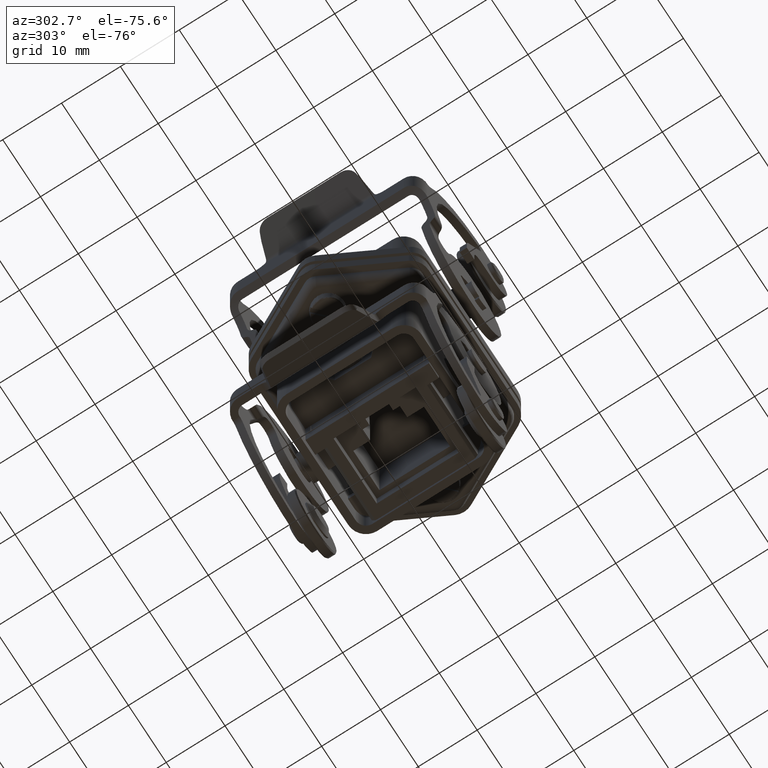
[diagram: clean part render]
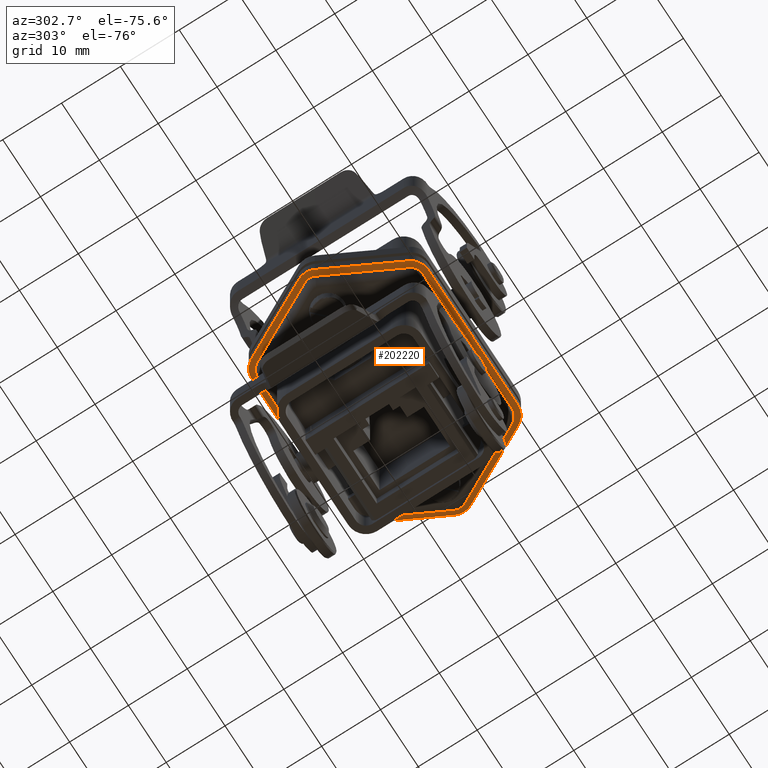
[diagram: same view with one face highlighted and labeled with its STEP entity id]
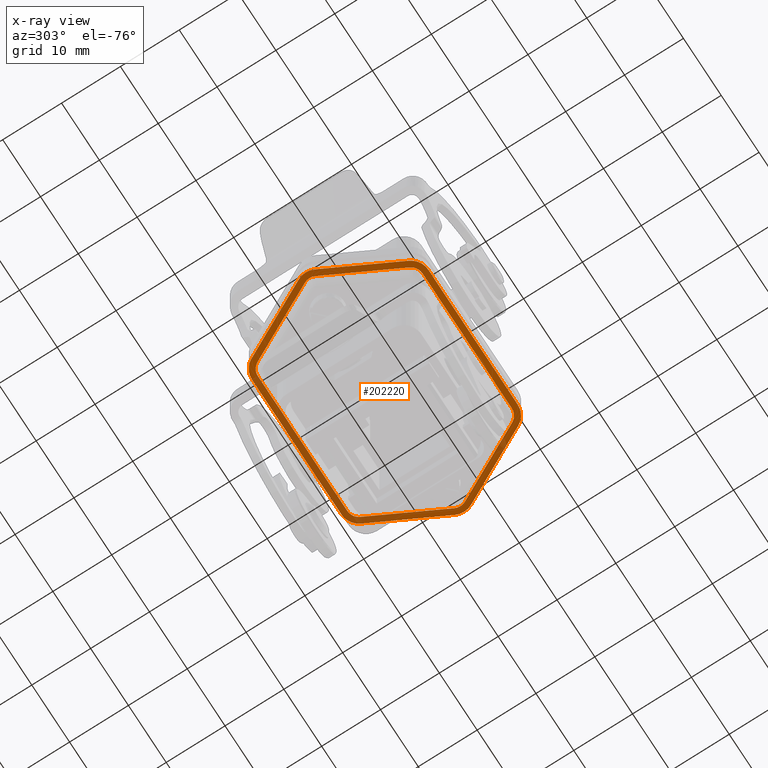
[diagram: x-ray of the same camera — body ghosted, the highlighted face saturated]
A machine part, auxiliary view. The second image highlights one B-rep face of the part: STEP entity #202220.
The next image is the same camera in x-ray: the body ghosted, the highlighted face saturated — about 26% of this face is hidden behind the body in this view.
In plain terms, the highlighted planar face has unit normal (0, 0, -1).
Its self-contained STEP definition (entity closure, byte-faithful):
#36840=CARTESIAN_POINT('',(11.8153415615735,15.,-23.5));
#36850=VERTEX_POINT('',#36840);
#37020=CARTESIAN_POINT('',(-11.8153417853227,15.,-23.5));
#37030=VERTEX_POINT('',#37020);
#37060=CARTESIAN_POINT('',(11.8153415615735,15.,-23.5));
#37070=DIRECTION('',(-1.,0.,0.));
#37080=VECTOR('',#37070,23.630683123147);
#37090=LINE('',#37060,#37080);
#37100=EDGE_CURVE('',#36850,#37030,#37090,.T.);
#44220=CARTESIAN_POINT('',(-20.6666666666667,-1.37436854187256,-23.5));
#44230=VERTEX_POINT('',#44220);
#44400=CARTESIAN_POINT('',(-14.4820083087665,-13.3743683856286,-23.5));
#44410=VERTEX_POINT('',#44400);
#44440=CARTESIAN_POINT('',(-20.6666666666667,-1.37436854187256,-23.5));
#44450=DIRECTION('',(0.458122847290851,-0.888888888888889,0.));
#44460=VECTOR('',#44450,13.5);
#44470=LINE('',#44440,#44460);
#44480=EDGE_CURVE('',#44230,#44410,#44470,.T.);
#53060=CARTESIAN_POINT('',(-14.4820082282402,13.3743685418726,-23.5));
#53070=VERTEX_POINT('',#53060);
#53100=CARTESIAN_POINT('',(-11.8153415615735,12.,-23.5));
#53110=DIRECTION('',(0.,0.,1.));
#53120=DIRECTION('',(-0.888888888888889,0.458122847290851,-0.));
#53130=AXIS2_PLACEMENT_3D('',#53100,#53110,#53120);
#53140=CIRCLE('',#53130,3.);
#53150=EDGE_CURVE('',#37030,#53070,#53140,.T.);
#87320=CARTESIAN_POINT('',(-11.8153417854082,-15.,-23.5));
#87330=VERTEX_POINT('',#87320);
#87360=CARTESIAN_POINT('',(-11.8153415615735,-12.,-23.5));
#87370=DIRECTION('',(0.,0.,1.));
#87380=DIRECTION('',(0.,-1.,0.));
#87390=AXIS2_PLACEMENT_3D('',#87360,#87370,#87380);
#87400=CIRCLE('',#87390,3.);
#87410=EDGE_CURVE('',#44410,#87330,#87400,.T.);
#114140=CARTESIAN_POINT('',(-20.6666666666667,1.37436854187256,-23.5));
#114150=VERTEX_POINT('',#114140);
#114180=CARTESIAN_POINT('',(-14.4820082282402,13.3743685418726,-23.5));
#114190=DIRECTION('',(-0.458122847290851,-0.888888888888889,0.));
#114200=VECTOR('',#114190,13.5);
#114210=LINE('',#114180,#114200);
#114220=EDGE_CURVE('',#53070,#114150,#114210,.T.);
#117080=CARTESIAN_POINT('',(19.7777777777778,-0.916245694581701,-23.5));
#117090=VERTEX_POINT('',#117080);
#117170=CARTESIAN_POINT('',(13.5931193393513,-12.9162456945817,-23.5));
#117180=VERTEX_POINT('',#117170);
#117210=CARTESIAN_POINT('',(19.7777777777778,-0.916245694581701,-23.5));
#117220=DIRECTION('',(-0.458122847290851,-0.888888888888889,0.));
#117230=VECTOR('',#117220,13.5);
#117240=LINE('',#117210,#117230);
#117250=EDGE_CURVE('',#117090,#117180,#117240,.T.);
#118060=CARTESIAN_POINT('',(-18.,0.,-23.5));
#118070=DIRECTION('',(0.,0.,1.));
#118080=DIRECTION('',(-0.888888888888889,-0.458122847290852,0.));
#118090=AXIS2_PLACEMENT_3D('',#118060,#118070,#118080);
#118100=CIRCLE('',#118090,3.);
#118110=EDGE_CURVE('',#114150,#44230,#118100,.T.);
#118320=CARTESIAN_POINT('',(14.4820082282402,13.3743685418726,-23.5));
#118330=VERTEX_POINT('',#118320);
#118460=CARTESIAN_POINT('',(11.8153415615735,12.,-23.5));
#118470=DIRECTION('',(0.,0.,1.));
#118480=DIRECTION('',(0.,1.,0.));
#118490=AXIS2_PLACEMENT_3D('',#118460,#118470,#118480);
#118500=CIRCLE('',#118490,3.);
#118510=EDGE_CURVE('',#118330,#36850,#118500,.T.);
#133010=CARTESIAN_POINT('',(19.7777777777778,0.916245694581701,-23.5));
#133020=VERTEX_POINT('',#133010);
#133070=CARTESIAN_POINT('',(18.,2.220446E-15,-23.5));
#133080=DIRECTION('',(0.,0.,-1.));
#133090=DIRECTION('',(0.888888888888889,0.458122847290851,0.));
#133100=AXIS2_PLACEMENT_3D('',#133070,#133080,#133090);
#133110=CIRCLE('',#133100,2.);
#133120=EDGE_CURVE('',#133020,#117090,#133110,.T.);
#133330=CARTESIAN_POINT('',(13.5931193393513,12.9162456945817,-23.5));
#133340=VERTEX_POINT('',#133330);
#133390=CARTESIAN_POINT('',(13.5931193393513,12.9162456945817,-23.5));
#133400=DIRECTION('',(0.458122847290851,-0.888888888888889,0.));
#133410=VECTOR('',#133400,13.5);
#133420=LINE('',#133390,#133410);
#133430=EDGE_CURVE('',#133340,#133020,#133420,.T.);
#133640=CARTESIAN_POINT('',(11.8153415615735,-14.,-23.5));
#133650=VERTEX_POINT('',#133640);
#133820=CARTESIAN_POINT('',(-11.8153415615735,-14.,-23.5));
#133830=VERTEX_POINT('',#133820);
#133860=CARTESIAN_POINT('',(11.8153415615735,-14.,-23.5));
#133870=DIRECTION('',(-1.,0.,0.));
#133880=VECTOR('',#133870,23.630683123147);
#133890=LINE('',#133860,#133880);
#133900=EDGE_CURVE('',#133650,#133830,#133890,.T.);
#134210=CARTESIAN_POINT('',(-13.5931193393513,-12.9162456945817,-23.5));
#134220=VERTEX_POINT('',#134210);
#134250=CARTESIAN_POINT('',(-11.8153415615735,-12.,-23.5));
#134260=DIRECTION('',(0.,0.,-1.));
#134270=DIRECTION('',(0.,-1.,0.));
#134280=AXIS2_PLACEMENT_3D('',#134250,#134260,#134270);
#134290=CIRCLE('',#134280,2.);
#134300=EDGE_CURVE('',#133830,#134220,#134290,.T.);
#134510=CARTESIAN_POINT('',(-11.8153415615735,14.,-23.5));
#134520=VERTEX_POINT('',#134510);
#134600=CARTESIAN_POINT('',(11.8153415615735,14.,-23.5));
#134610=VERTEX_POINT('',#134600);
#134640=CARTESIAN_POINT('',(-11.8153415615735,14.,-23.5));
#134650=DIRECTION('',(1.,0.,0.));
#134660=VECTOR('',#134650,23.630683123147);
#134670=LINE('',#134640,#134660);
#134680=EDGE_CURVE('',#134520,#134610,#134670,.T.);
#134880=CARTESIAN_POINT('',(11.8153415615735,12.,-23.5));
#134890=DIRECTION('',(0.,0.,-1.));
#134900=DIRECTION('',(0.,1.,0.));
#134910=AXIS2_PLACEMENT_3D('',#134880,#134890,#134900);
#134920=CIRCLE('',#134910,1.99999999999999);
#134930=EDGE_CURVE('',#134610,#133340,#134920,.T.);
#135140=CARTESIAN_POINT('',(-13.5931193393513,12.9162456945817,-23.5));
#135150=VERTEX_POINT('',#135140);
#135280=CARTESIAN_POINT('',(-11.8153415615735,12.,-23.5));
#135290=DIRECTION('',(0.,0.,-1.));
#135300=DIRECTION('',(-0.888888888888889,0.458122847290851,0.));
#135310=AXIS2_PLACEMENT_3D('',#135280,#135290,#135300);
#135320=CIRCLE('',#135310,1.99999999999998);
#135330=EDGE_CURVE('',#135150,#134520,#135320,.T.);
#135540=CARTESIAN_POINT('',(-19.7777777777778,0.916245694581703,-23.5));
#135550=VERTEX_POINT('',#135540);
#135670=CARTESIAN_POINT('',(-19.7777777777778,0.916245694581703,-23.5));
#135680=DIRECTION('',(0.458122847290851,0.888888888888889,0.));
#135690=VECTOR('',#135680,13.5);
#135700=LINE('',#135670,#135690);
#135710=EDGE_CURVE('',#135550,#135150,#135700,.T.);
#135920=CARTESIAN_POINT('',(-19.7777777777778,-0.916245694581705,-23.5))
;
#135930=VERTEX_POINT('',#135920);
#136060=CARTESIAN_POINT('',(-18.,2.220446E-15,-23.5));
#136070=DIRECTION('',(0.,0.,-1.));
#136080=DIRECTION('',(-0.888888888888889,-0.458122847290851,0.));
#136090=AXIS2_PLACEMENT_3D('',#136060,#136070,#136080);
#136100=CIRCLE('',#136090,2.00000000000001);
#136110=EDGE_CURVE('',#135930,#135550,#136100,.T.);
#136360=CARTESIAN_POINT('',(-13.5931193393513,-12.9162456945817,-23.5));
#136370=DIRECTION('',(-0.458122847290851,0.888888888888889,-0.));
#136380=VECTOR('',#136370,13.5);
#136390=LINE('',#136360,#136380);
#136400=EDGE_CURVE('',#134220,#135930,#136390,.T.);
#201370=CARTESIAN_POINT('',(11.8153415615735,-12.,-23.5));
#201380=DIRECTION('',(0.,0.,-1.));
#201390=DIRECTION('',(0.888888888888889,-0.458122847290852,0.));
#201400=AXIS2_PLACEMENT_3D('',#201370,#201380,#201390);
#201410=CIRCLE('',#201400,2.);
#201420=EDGE_CURVE('',#117180,#133650,#201410,.T.);
#201540=CARTESIAN_POINT('',(-5.8643886788005E-15,-5.551115E-16,-23.5));
#201550=DIRECTION('',(0.,0.,-1.));
#201560=DIRECTION('',(1.,0.,0.));
#201570=AXIS2_PLACEMENT_3D('',#201540,#201550,#201560);
#201580=PLANE('',#201570);
#201590=ORIENTED_EDGE('',*,*,#134300,.F.);
#201600=ORIENTED_EDGE('',*,*,#136400,.F.);
#201610=ORIENTED_EDGE('',*,*,#136110,.F.);
#201620=ORIENTED_EDGE('',*,*,#135710,.F.);
#201630=ORIENTED_EDGE('',*,*,#135330,.F.);
#201640=ORIENTED_EDGE('',*,*,#134680,.F.);
#201650=ORIENTED_EDGE('',*,*,#134930,.F.);
#201660=ORIENTED_EDGE('',*,*,#133430,.F.);
#201670=ORIENTED_EDGE('',*,*,#133120,.F.);
#201680=ORIENTED_EDGE('',*,*,#117250,.F.);
#201690=ORIENTED_EDGE('',*,*,#201420,.F.);
#201700=ORIENTED_EDGE('',*,*,#133900,.F.);
#201710=EDGE_LOOP('',(#201700,#201690,#201680,#201670,#201660,#201650,
#201640,#201630,#201620,#201610,#201600,#201590));
#201720=FACE_BOUND('',#201710,.T.);
#201730=CARTESIAN_POINT('',(11.8153415615735,-12.,-23.5));
#201740=DIRECTION('',(0.,0.,1.));
#201750=DIRECTION('',(0.888888888888889,-0.458122847290851,0.));
#201760=AXIS2_PLACEMENT_3D('',#201730,#201740,#201750);
#201770=CIRCLE('',#201760,3.);
#201780=CARTESIAN_POINT('',(11.8153415615735,-15.,-23.5));
#201790=VERTEX_POINT('',#201780);
#201800=CARTESIAN_POINT('',(14.4820081539789,-13.3743686859606,-23.5));
#201810=VERTEX_POINT('',#201800);
#201820=EDGE_CURVE('',#201790,#201810,#201770,.T.);
#201830=ORIENTED_EDGE('',*,*,#201820,.F.);
#201840=CARTESIAN_POINT('',(14.4820082282402,-13.3743685418726,-23.5));
#201850=DIRECTION('',(0.458122847290851,0.888888888888889,0.));
#201860=VECTOR('',#201850,13.5);
#201870=LINE('',#201840,#201860);
#201880=CARTESIAN_POINT('',(20.6666665945477,-1.37436868180394,-23.5));
#201890=VERTEX_POINT('',#201880);
#201900=EDGE_CURVE('',#201810,#201890,#201870,.T.);
#201910=ORIENTED_EDGE('',*,*,#201900,.F.);
#201920=CARTESIAN_POINT('',(18.,0.,-23.5));
#201930=DIRECTION('',(0.,0.,1.));
#201940=DIRECTION('',(0.888888888888889,0.458122847290851,0.));
#201950=AXIS2_PLACEMENT_3D('',#201920,#201930,#201940);
#201960=CIRCLE('',#201950,3.);
#201970=CARTESIAN_POINT('',(20.6666666666667,1.37436854187255,-23.5));
#201980=VERTEX_POINT('',#201970);
#201990=EDGE_CURVE('',#201890,#201980,#201960,.T.);
#202000=ORIENTED_EDGE('',*,*,#201990,.F.);
#202010=CARTESIAN_POINT('',(20.6666666666667,1.37436854187256,-23.5));
#202020=DIRECTION('',(-0.458122847290851,0.888888888888889,-0.));
#202030=VECTOR('',#202020,13.5);
#202040=LINE('',#202010,#202030);
#202050=EDGE_CURVE('',#201980,#118330,#202040,.T.);
#202060=ORIENTED_EDGE('',*,*,#202050,.F.);
#202070=ORIENTED_EDGE('',*,*,#118510,.F.);
#202080=ORIENTED_EDGE('',*,*,#37100,.F.);
#202090=ORIENTED_EDGE('',*,*,#53150,.F.);
#202100=ORIENTED_EDGE('',*,*,#114220,.F.);
#202110=ORIENTED_EDGE('',*,*,#118110,.F.);
#202120=ORIENTED_EDGE('',*,*,#44480,.F.);
#202130=ORIENTED_EDGE('',*,*,#87410,.F.);
#202140=CARTESIAN_POINT('',(-11.8153415615735,-15.,-23.5));
#202150=DIRECTION('',(1.,0.,0.));
#202160=VECTOR('',#202150,23.630683123147);
#202170=LINE('',#202140,#202160);
#202180=EDGE_CURVE('',#87330,#201790,#202170,.T.);
#202190=ORIENTED_EDGE('',*,*,#202180,.F.);
#202200=EDGE_LOOP('',(#202190,#202130,#202120,#202110,#202100,#202090,
#202080,#202070,#202060,#202000,#201910,#201830));
#202210=FACE_OUTER_BOUND('',#202200,.T.);
#202220=ADVANCED_FACE('',(#201720,#202210),#201580,.T.);